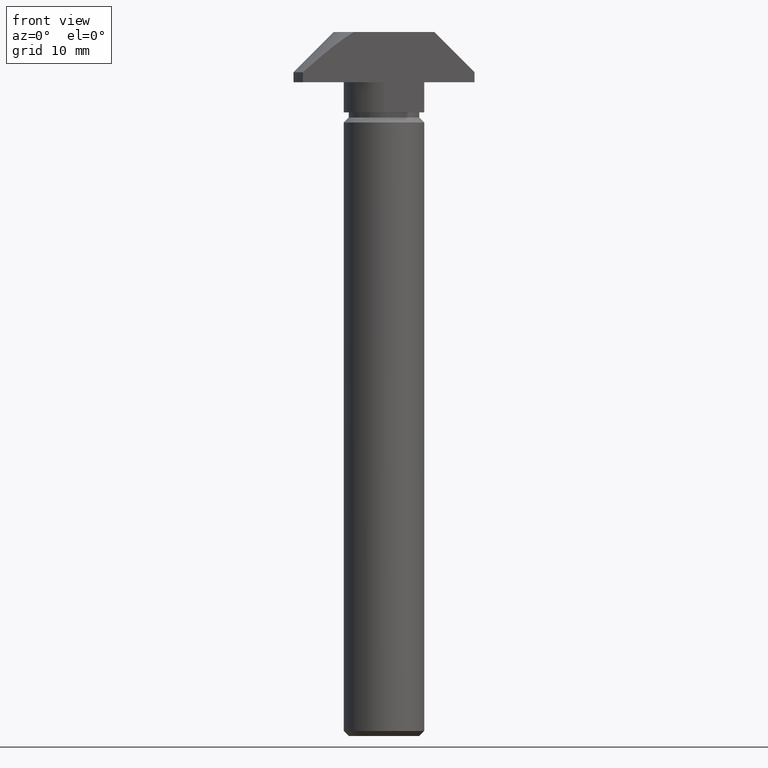
[diagram: clean part render]
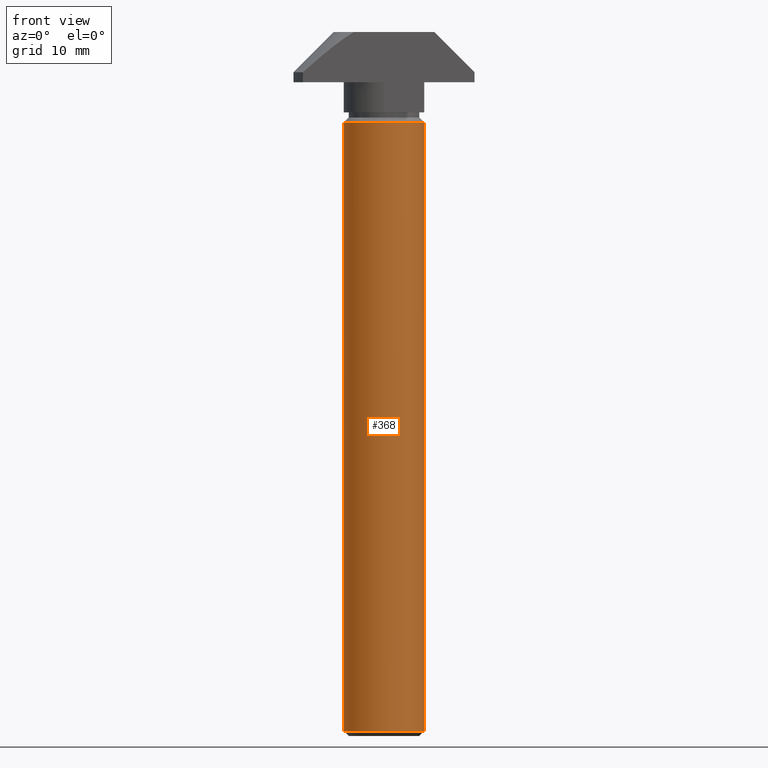
[diagram: same view with one face highlighted and labeled with its STEP entity id]
A machine part, front view. The second image highlights one B-rep face of the part: STEP entity #368.
In plain terms, the highlighted cylindrical surface (bore or boss wall) has radius 4 mm, axis along (0, 0, -1).
Its self-contained STEP definition (entity closure, byte-faithful):
#98=CYLINDRICAL_SURFACE('',#395,4.);
#105=FACE_BOUND('',#135,.T.);
#110=FACE_OUTER_BOUND('',#134,.T.);
#134=EDGE_LOOP('',(#263));
#135=EDGE_LOOP('',(#264));
#160=CIRCLE('',#393,4.);
#162=CIRCLE('',#396,4.);
#175=VERTEX_POINT('',#544);
#177=VERTEX_POINT('',#549);
#210=EDGE_CURVE('',#175,#175,#160,.T.);
#212=EDGE_CURVE('',#177,#177,#162,.T.);
#263=ORIENTED_EDGE('',*,*,#212,.F.);
#264=ORIENTED_EDGE('',*,*,#210,.F.);
#368=ADVANCED_FACE('',(#110,#105),#98,.T.);
#393=AXIS2_PLACEMENT_3D('',#545,#434,#435);
#395=AXIS2_PLACEMENT_3D('',#548,#438,#439);
#396=AXIS2_PLACEMENT_3D('',#550,#440,#441);
#434=DIRECTION('center_axis',(0.,0.,1.));
#435=DIRECTION('ref_axis',(1.,0.,0.));
#438=DIRECTION('center_axis',(0.,0.,-1.));
#439=DIRECTION('ref_axis',(1.,0.,0.));
#440=DIRECTION('center_axis',(0.,0.,-1.));
#441=DIRECTION('ref_axis',(1.,0.,0.));
#544=CARTESIAN_POINT('',(-4.,-4.89858719658941E-16,-9.));
#545=CARTESIAN_POINT('Origin',(0.,0.,-9.));
#548=CARTESIAN_POINT('Origin',(0.,0.,-8.5));
#549=CARTESIAN_POINT('',(-4.,4.89858719658941E-16,-69.5));
#550=CARTESIAN_POINT('Origin',(0.,0.,-69.5));